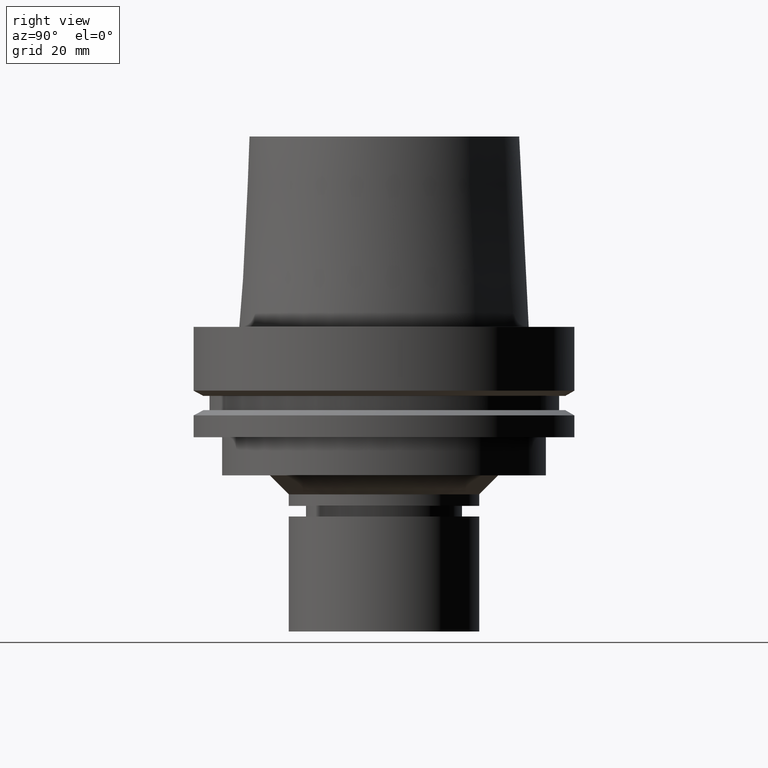
[diagram: clean part render]
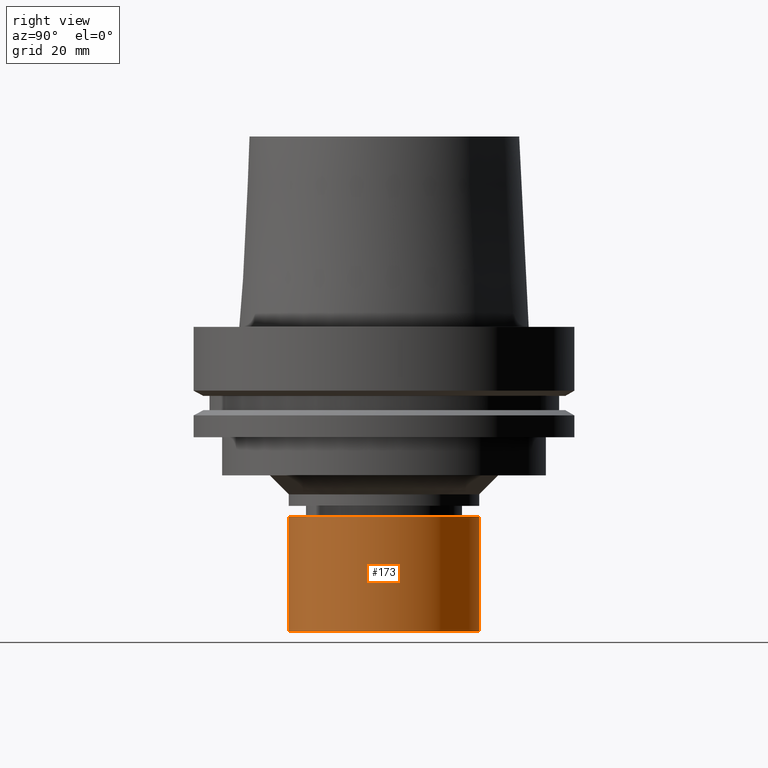
[diagram: same view with one face highlighted and labeled with its STEP entity id]
A machine part, right view. The second image highlights one B-rep face of the part: STEP entity #173.
In plain terms, the highlighted cylindrical surface (bore or boss wall) has radius 25 mm, axis along (0, 0, -1).
Its self-contained STEP definition (entity closure, byte-faithful):
#81=EDGE_CURVE('Unnamed[1]',#222,#222,#223,.T.);
#170=EDGE_CURVE('Unnamed[1]',#357,#357,#358,.T.);
#173=ADVANCED_FACE('Unnamed[1]',(#361,#362),#363,.T.);
#222=VERTEX_POINT('',#422);
#223=CIRCLE('',#423,25.0);
#357=VERTEX_POINT('',#590);
#358=CIRCLE('',#591,25.0);
#361=FACE_BOUND('',#595,.T.);
#362=FACE_BOUND('',#596,.T.);
#363=CYLINDRICAL_SURFACE('',#597,25.0);
#422=CARTESIAN_POINT('',(4.89858719658941E-015,25.0,-80.0));
#423=AXIS2_PLACEMENT_3D('',#655,#656,#657);
#590=CARTESIAN_POINT('',(3.04937052987691E-015,25.0,-49.8));
#591=AXIS2_PLACEMENT_3D('',#803,#804,#805);
#595=EDGE_LOOP('',(#807));
#596=EDGE_LOOP('',(#808));
#597=AXIS2_PLACEMENT_3D('',#809,#810,#811);
#655=CARTESIAN_POINT('',(4.89858719658941E-015,9.79717439317882E-015,-80.0));
#656=DIRECTION('',(6.12323399573677E-017,1.22464679914735E-016,-1.0));
#657=DIRECTION('',(-1.23259516440783E-032,1.0,1.22464679914735E-016));
#803=CARTESIAN_POINT('',(3.04937052987691E-015,6.09874105975382E-015,-49.8));
#804=DIRECTION('',(6.12323399573677E-017,1.22464679914735E-016,-1.0));
#805=DIRECTION('',(-1.23259516440783E-032,1.0,1.22464679914735E-016));
#807=ORIENTED_EDGE('',*,*,#81,.F.);
#808=ORIENTED_EDGE('',*,*,#170,.T.);
#809=CARTESIAN_POINT('',(3.97397886323316E-015,7.94795772646632E-015,-64.9));
#810=DIRECTION('',(6.12323399573677E-017,1.22464679914735E-016,-1.0));
#811=DIRECTION('',(-1.23259516440783E-032,1.0,1.22464679914735E-016));